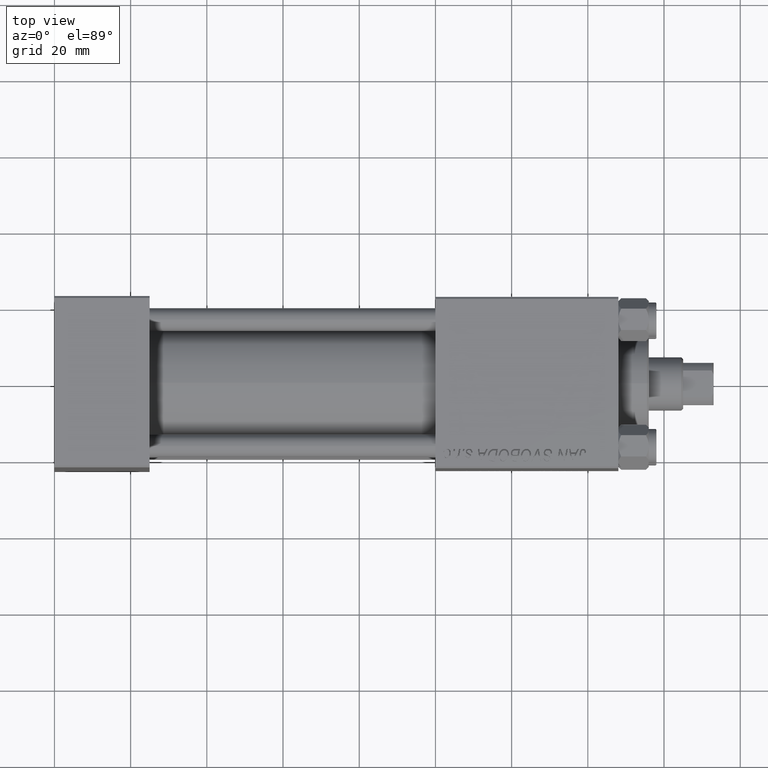
[diagram: clean part render]
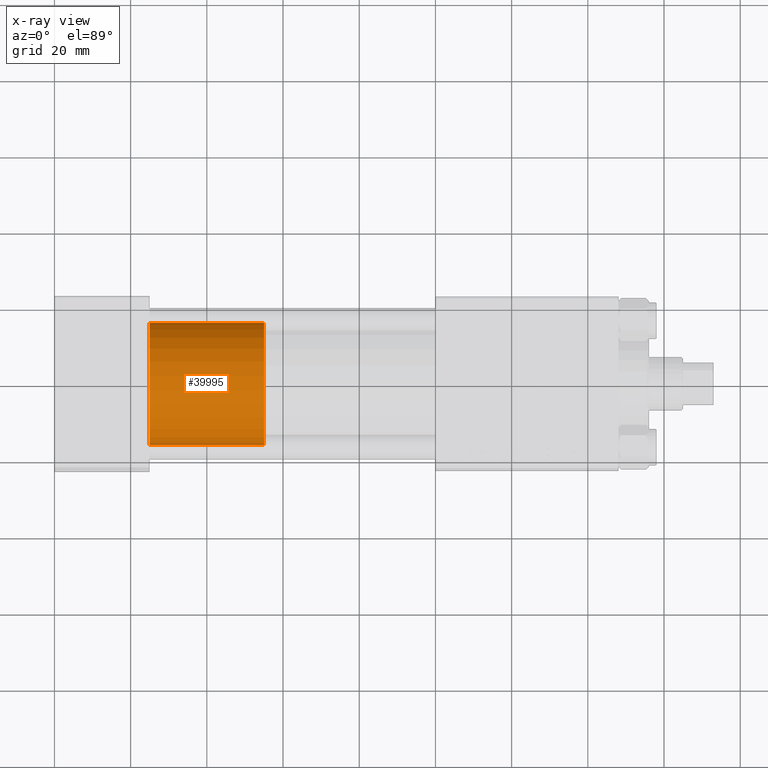
[diagram: x-ray — body ghosted, one internal face saturated and labeled with its STEP entity id]
A machine part, top view, then the same camera in x-ray: the body is ghosted and one INTERNAL B-rep face — a face not visible from any outside direction — is saturated and labeled: STEP entity #39995.
In plain terms, the highlighted cylindrical surface (partial cylindrical patch) has radius 16 mm, axis along (-1, 0, 0).
Its self-contained STEP definition (entity closure, byte-faithful):
#127 = DIRECTION ( 'NONE',  ( -0.000000000000000000, -0.000000000000000000, -1.000000000000000000 ) ) ;
#294 = VERTEX_POINT ( 'NONE', #16439 ) ;
#1653 = DIRECTION ( 'NONE',  ( 1.000000000000000000, 0.000000000000000000, 0.000000000000000000 ) ) ;
#1950 = CARTESIAN_POINT ( 'NONE',  ( 16.00000000000000000, 1.959434878635765131E-15, 0.000000000000000000 ) ) ;
#3219 = AXIS2_PLACEMENT_3D ( 'NONE', #12430, #24051, #27858 ) ;
#4146 = CARTESIAN_POINT ( 'NONE',  ( 16.00000000000000000, 1.959434878635765131E-15, 30.00000000000000000 ) ) ;
#5064 = DIRECTION ( 'NONE',  ( -0.000000000000000000, -0.000000000000000000, -1.000000000000000000 ) ) ;
#8854 = LINE ( 'NONE', #43228, #35387 ) ;
#10327 = AXIS2_PLACEMENT_3D ( 'NONE', #34319, #14352, #22693 ) ;
#12069 = ORIENTED_EDGE ( 'NONE', *, *, #48757, .F. ) ;
#12430 = CARTESIAN_POINT ( 'NONE',  ( 0.000000000000000000, 0.000000000000000000, 30.00000000000000000 ) ) ;
#12470 = VERTEX_POINT ( 'NONE', #1950 ) ;
#13022 = AXIS2_PLACEMENT_3D ( 'NONE', #47393, #36276, #1653 ) ;
#13674 = EDGE_CURVE ( 'NONE', #294, #12470, #39665, .T. ) ;
#13887 = VECTOR ( 'NONE', #127, 1000.000000000000000 ) ;
#14189 = ORIENTED_EDGE ( 'NONE', *, *, #13674, .T. ) ;
#14352 = DIRECTION ( 'NONE',  ( -0.000000000000000000, -0.000000000000000000, -1.000000000000000000 ) ) ;
#15817 = EDGE_CURVE ( 'NONE', #25102, #294, #34740, .T. ) ;
#16439 = CARTESIAN_POINT ( 'NONE',  ( -16.00000000000000000, 0.000000000000000000, 0.000000000000000000 ) ) ;
#21514 = EDGE_LOOP ( 'NONE', ( #38058, #12069, #44068, #14189 ) ) ;
#21577 = VERTEX_POINT ( 'NONE', #4146 ) ;
#22693 = DIRECTION ( 'NONE',  ( -1.000000000000000000, 0.000000000000000000, 0.000000000000000000 ) ) ;
#24051 = DIRECTION ( 'NONE',  ( 0.000000000000000000, 0.000000000000000000, 1.000000000000000000 ) ) ;
#25102 = VERTEX_POINT ( 'NONE', #49213 ) ;
#27858 = DIRECTION ( 'NONE',  ( 1.000000000000000000, 0.000000000000000000, 0.000000000000000000 ) ) ;
#29871 = CIRCLE ( 'NONE', #3219, 16.00000000000000000 ) ;
#34319 = CARTESIAN_POINT ( 'NONE',  ( 0.000000000000000000, 0.000000000000000000, 30.00000000000000000 ) ) ;
#34740 = LINE ( 'NONE', #46617, #13887 ) ;
#35387 = VECTOR ( 'NONE', #5064, 1000.000000000000000 ) ;
#36276 = DIRECTION ( 'NONE',  ( 0.000000000000000000, 0.000000000000000000, 1.000000000000000000 ) ) ;
#37361 = EDGE_CURVE ( 'NONE', #21577, #12470, #8854, .T. ) ;
#38058 = ORIENTED_EDGE ( 'NONE', *, *, #37361, .F. ) ;
#39665 = CIRCLE ( 'NONE', #13022, 16.00000000000000000 ) ;
#39995 = ADVANCED_FACE ( 'NONE', ( #45932 ), #41652, .T. ) ;
#41652 = CYLINDRICAL_SURFACE ( 'NONE', #10327, 16.00000000000000000 ) ;
#43228 = CARTESIAN_POINT ( 'NONE',  ( 16.00000000000000000, 1.959434878635765131E-15, 30.00000000000000000 ) ) ;
#44068 = ORIENTED_EDGE ( 'NONE', *, *, #15817, .T. ) ;
#45932 = FACE_OUTER_BOUND ( 'NONE', #21514, .T. ) ;
#46617 = CARTESIAN_POINT ( 'NONE',  ( -16.00000000000000000, 0.000000000000000000, 30.00000000000000000 ) ) ;
#47393 = CARTESIAN_POINT ( 'NONE',  ( 0.000000000000000000, 0.000000000000000000, 0.000000000000000000 ) ) ;
#48757 = EDGE_CURVE ( 'NONE', #25102, #21577, #29871, .T. ) ;
#49213 = CARTESIAN_POINT ( 'NONE',  ( -16.00000000000000000, 0.000000000000000000, 30.00000000000000000 ) ) ;